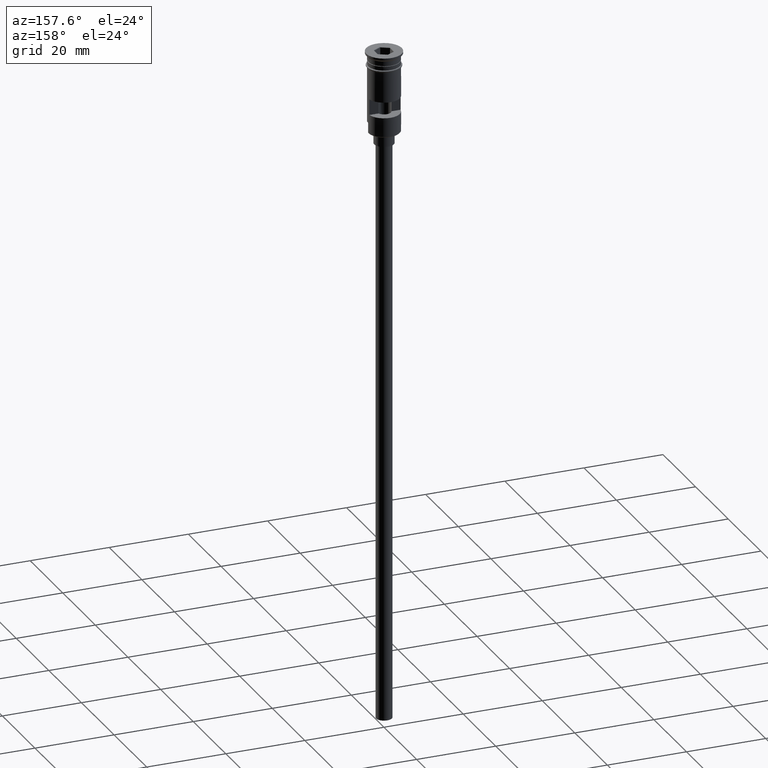
[diagram: clean part render]
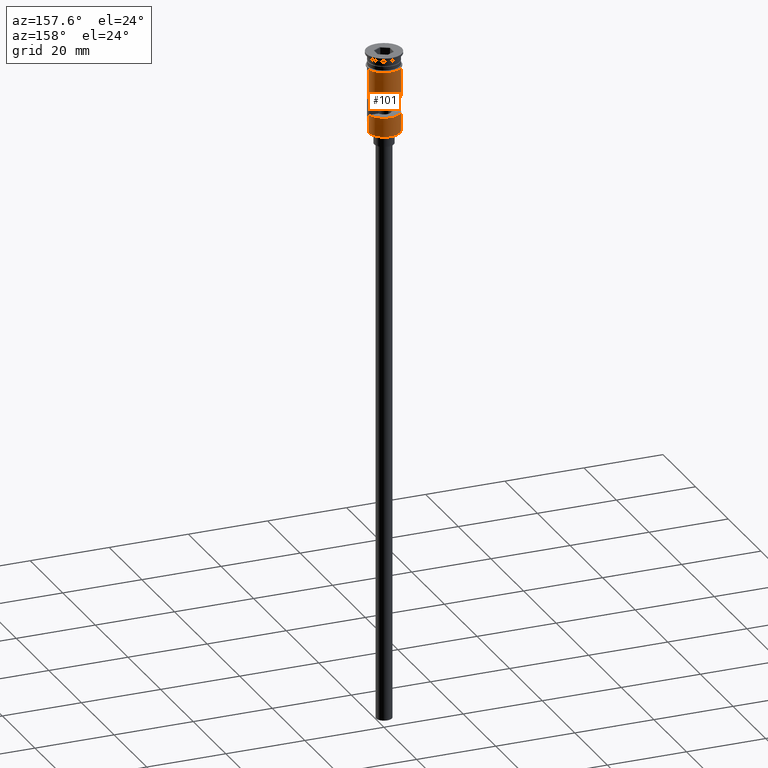
[diagram: same view with one face highlighted and labeled with its STEP entity id]
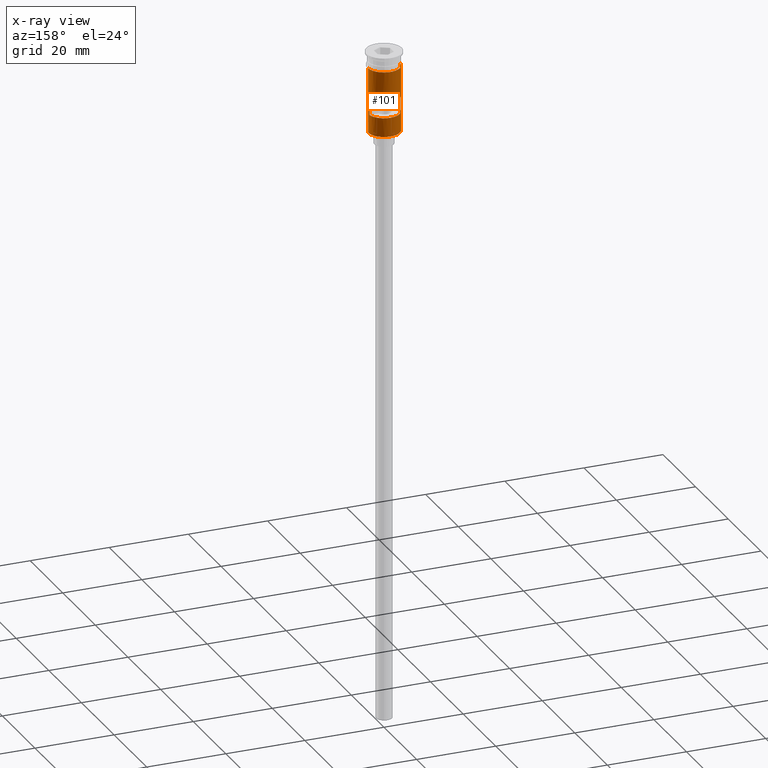
[diagram: x-ray of the same camera — body ghosted, the highlighted face saturated]
A machine part, auxiliary view. The second image highlights one B-rep face of the part: STEP entity #101.
The next image is the same camera in x-ray: the body ghosted, the highlighted face saturated — about 0% of this face is hidden behind the body in this view.
In plain terms, the highlighted cylindrical surface (edge-blend (fillet) strip) has radius 4 mm, axis along (-0, -0, 1).
Its self-contained STEP definition (entity closure, byte-faithful):
#16 = EDGE_CURVE ( 'NONE', #98, #976, #591, .T. ) ;
#43 = DIRECTION ( 'NONE',  ( 1.000000000000000000, 0.000000000000000000, 0.000000000000000000 ) ) ;
#92 = VERTEX_POINT ( 'NONE', #450 ) ;
#96 = CARTESIAN_POINT ( 'NONE',  ( 4.000000000000000000, 4.898587196589412829E-16, -17.79999999999998295 ) ) ;
#98 = VERTEX_POINT ( 'NONE', #96 ) ;
#101 = ADVANCED_FACE ( 'NONE', ( #458, #1328 ), #1089, .T. ) ;
#123 = CARTESIAN_POINT ( 'NONE',  ( -3.999999999999997335, 0.000000000000000000, -17.79999999999998295 ) ) ;
#126 = CIRCLE ( 'NONE', #1395, 4.000000000000000000 ) ;
#147 = VECTOR ( 'NONE', #1557, 1000.000000000000000 ) ;
#194 = ORIENTED_EDGE ( 'NONE', *, *, #16, .F. ) ;
#223 = ORIENTED_EDGE ( 'NONE', *, *, #1314, .T. ) ;
#230 = LINE ( 'NONE', #1330, #628 ) ;
#234 = VERTEX_POINT ( 'NONE', #367 ) ;
#253 = ORIENTED_EDGE ( 'NONE', *, *, #904, .F. ) ;
#258 = EDGE_CURVE ( 'NONE', #92, #569, #677, .T. ) ;
#294 = EDGE_CURVE ( 'NONE', #1004, #1359, #1283, .T. ) ;
#299 = DIRECTION ( 'NONE',  ( 0.000000000000000000, 0.000000000000000000, -1.000000000000000000 ) ) ;
#300 = CARTESIAN_POINT ( 'NONE',  ( 0.000000000000000000, 0.000000000000000000, -15.50000000000000000 ) ) ;
#303 = VERTEX_POINT ( 'NONE', #914 ) ;
#367 = CARTESIAN_POINT ( 'NONE',  ( -3.999999999999997335, 0.000000000000000000, -20.29999999999997584 ) ) ;
#428 = AXIS2_PLACEMENT_3D ( 'NONE', #774, #1155, #43 ) ;
#447 = DIRECTION ( 'NONE',  ( -1.000000000000000000, 0.000000000000000000, 0.000000000000000000 ) ) ;
#450 = CARTESIAN_POINT ( 'NONE',  ( -3.954743986657037524, 0.5999999999999996447, -15.50000000000000000 ) ) ;
#458 = FACE_BOUND ( 'NONE', #522, .T. ) ;
#462 = AXIS2_PLACEMENT_3D ( 'NONE', #521, #789, #665 ) ;
#475 = EDGE_CURVE ( 'NONE', #1255, #234, #126, .T. ) ;
#480 = CARTESIAN_POINT ( 'NONE',  ( 3.954743986657038413, 0.5999999999999996447, -15.50000000000000000 ) ) ;
#521 = CARTESIAN_POINT ( 'NONE',  ( 0.000000000000000000, 0.000000000000000000, -3.799999999999998490 ) ) ;
#522 = EDGE_LOOP ( 'NONE', ( #1423, #566, #570, #1207 ) ) ;
#554 = CIRCLE ( 'NONE', #428, 4.000000000000000000 ) ;
#555 = CARTESIAN_POINT ( 'NONE',  ( -3.954743986657037524, 0.5999999999999996447, 0.000000000000000000 ) ) ;
#559 = ORIENTED_EDGE ( 'NONE', *, *, #769, .T. ) ;
#566 = ORIENTED_EDGE ( 'NONE', *, *, #801, .F. ) ;
#568 = CARTESIAN_POINT ( 'NONE',  ( 4.000000000000000000, 0.000000000000000000, -3.799999999999998490 ) ) ;
#569 = VERTEX_POINT ( 'NONE', #1246 ) ;
#570 = ORIENTED_EDGE ( 'NONE', *, *, #258, .F. ) ;
#591 = LINE ( 'NONE', #1097, #1367 ) ;
#595 = DIRECTION ( 'NONE',  ( 0.000000000000000000, 0.000000000000000000, 1.000000000000000000 ) ) ;
#628 = VECTOR ( 'NONE', #1209, 1000.000000000000000 ) ;
#638 = DIRECTION ( 'NONE',  ( -0.000000000000000000, -0.000000000000000000, 1.000000000000000000 ) ) ;
#665 = DIRECTION ( 'NONE',  ( 1.000000000000000000, 0.000000000000000000, 0.000000000000000000 ) ) ;
#677 = LINE ( 'NONE', #555, #147 ) ;
#687 = ORIENTED_EDGE ( 'NONE', *, *, #1247, .F. ) ;
#720 = DIRECTION ( 'NONE',  ( -0.000000000000000000, -0.000000000000000000, 1.000000000000000000 ) ) ;
#753 = CARTESIAN_POINT ( 'NONE',  ( 3.954743986657038413, 0.5999999999999996447, -11.50000000000000000 ) ) ;
#763 = AXIS2_PLACEMENT_3D ( 'NONE', #300, #1069, #447 ) ;
#765 = LINE ( 'NONE', #1390, #920 ) ;
#769 = EDGE_CURVE ( 'NONE', #1284, #303, #765, .T. ) ;
#774 = CARTESIAN_POINT ( 'NONE',  ( 0.000000000000000000, 0.000000000000000000, -11.50000000000000000 ) ) ;
#779 = EDGE_LOOP ( 'NONE', ( #223, #559, #687, #194, #253, #1466 ) ) ;
#789 = DIRECTION ( 'NONE',  ( -0.000000000000000000, -0.000000000000000000, 1.000000000000000000 ) ) ;
#801 = EDGE_CURVE ( 'NONE', #569, #1004, #554, .T. ) ;
#830 = DIRECTION ( 'NONE',  ( -1.000000000000000000, 0.000000000000000000, 0.000000000000000000 ) ) ;
#862 = LINE ( 'NONE', #1491, #1290 ) ;
#886 = DIRECTION ( 'NONE',  ( 1.000000000000000000, 0.000000000000000000, 0.000000000000000000 ) ) ;
#904 = EDGE_CURVE ( 'NONE', #1255, #98, #230, .T. ) ;
#914 = CARTESIAN_POINT ( 'NONE',  ( -4.000000000000000000, 4.898587196589412829E-16, -3.799999999999998490 ) ) ;
#920 = VECTOR ( 'NONE', #638, 1000.000000000000000 ) ;
#959 = DIRECTION ( 'NONE',  ( -0.000000000000000000, -0.000000000000000000, 1.000000000000000000 ) ) ;
#976 = VERTEX_POINT ( 'NONE', #568 ) ;
#1004 = VERTEX_POINT ( 'NONE', #753 ) ;
#1020 = CARTESIAN_POINT ( 'NONE',  ( 3.999999999999997335, 4.898587196589409870E-16, -20.29999999999997584 ) ) ;
#1025 = VECTOR ( 'NONE', #299, 1000.000000000000000 ) ;
#1049 = AXIS2_PLACEMENT_3D ( 'NONE', #1579, #959, #886 ) ;
#1069 = DIRECTION ( 'NONE',  ( 0.000000000000000000, 0.000000000000000000, 1.000000000000000000 ) ) ;
#1089 = CYLINDRICAL_SURFACE ( 'NONE', #1049, 4.000000000000000000 ) ;
#1097 = CARTESIAN_POINT ( 'NONE',  ( 4.000000000000000000, 0.000000000000000000, 0.000000000000000000 ) ) ;
#1155 = DIRECTION ( 'NONE',  ( -0.000000000000000000, 0.000000000000000000, -1.000000000000000000 ) ) ;
#1207 = ORIENTED_EDGE ( 'NONE', *, *, #1571, .F. ) ;
#1209 = DIRECTION ( 'NONE',  ( -0.000000000000000000, -0.000000000000000000, 1.000000000000000000 ) ) ;
#1246 = CARTESIAN_POINT ( 'NONE',  ( -3.954743986657037524, 0.5999999999999996447, -11.50000000000000000 ) ) ;
#1247 = EDGE_CURVE ( 'NONE', #976, #303, #1319, .T. ) ;
#1255 = VERTEX_POINT ( 'NONE', #1020 ) ;
#1283 = LINE ( 'NONE', #1309, #1025 ) ;
#1284 = VERTEX_POINT ( 'NONE', #123 ) ;
#1290 = VECTOR ( 'NONE', #1580, 1000.000000000000000 ) ;
#1309 = CARTESIAN_POINT ( 'NONE',  ( 3.954743986657037524, 0.5999999999999996447, 0.000000000000000000 ) ) ;
#1314 = EDGE_CURVE ( 'NONE', #234, #1284, #862, .T. ) ;
#1319 = CIRCLE ( 'NONE', #462, 4.000000000000000000 ) ;
#1328 = FACE_OUTER_BOUND ( 'NONE', #779, .T. ) ;
#1330 = CARTESIAN_POINT ( 'NONE',  ( 3.999999999999997335, 4.898587196589409870E-16, -20.49999999999999645 ) ) ;
#1348 = CIRCLE ( 'NONE', #763, 4.000000000000000000 ) ;
#1356 = CARTESIAN_POINT ( 'NONE',  ( 0.000000000000000000, 0.000000000000000000, -20.29999999999997584 ) ) ;
#1359 = VERTEX_POINT ( 'NONE', #480 ) ;
#1367 = VECTOR ( 'NONE', #720, 1000.000000000000000 ) ;
#1390 = CARTESIAN_POINT ( 'NONE',  ( -4.000000000000000000, 4.898587196589412829E-16, 0.000000000000000000 ) ) ;
#1395 = AXIS2_PLACEMENT_3D ( 'NONE', #1356, #595, #830 ) ;
#1423 = ORIENTED_EDGE ( 'NONE', *, *, #294, .F. ) ;
#1466 = ORIENTED_EDGE ( 'NONE', *, *, #475, .T. ) ;
#1491 = CARTESIAN_POINT ( 'NONE',  ( -3.999999999999997335, 0.000000000000000000, -20.49999999999999645 ) ) ;
#1557 = DIRECTION ( 'NONE',  ( -0.000000000000000000, -0.000000000000000000, 1.000000000000000000 ) ) ;
#1571 = EDGE_CURVE ( 'NONE', #1359, #92, #1348, .T. ) ;
#1579 = CARTESIAN_POINT ( 'NONE',  ( 0.000000000000000000, 0.000000000000000000, 0.000000000000000000 ) ) ;
#1580 = DIRECTION ( 'NONE',  ( -0.000000000000000000, -0.000000000000000000, 1.000000000000000000 ) ) ;